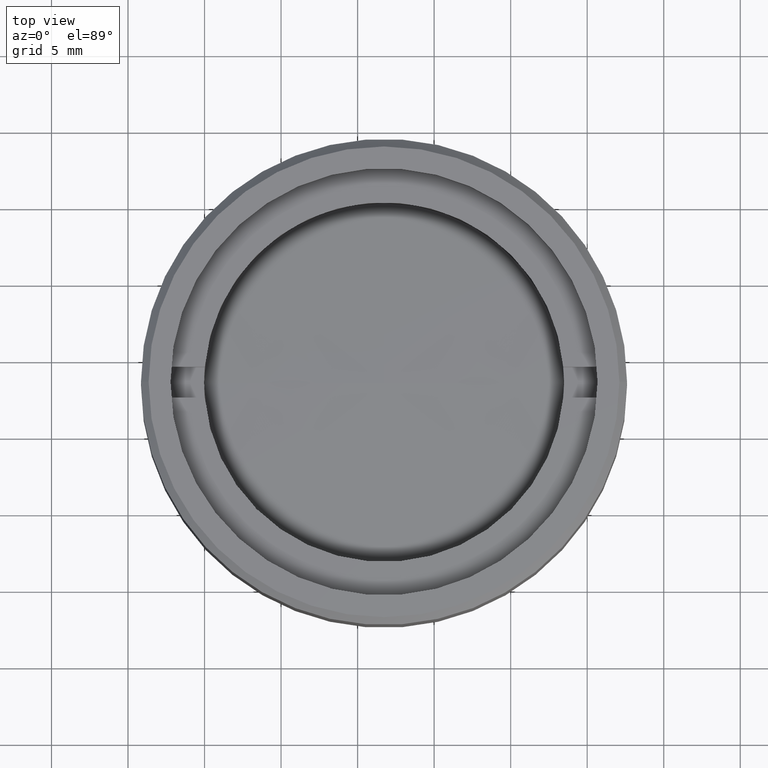
[diagram: clean part render]
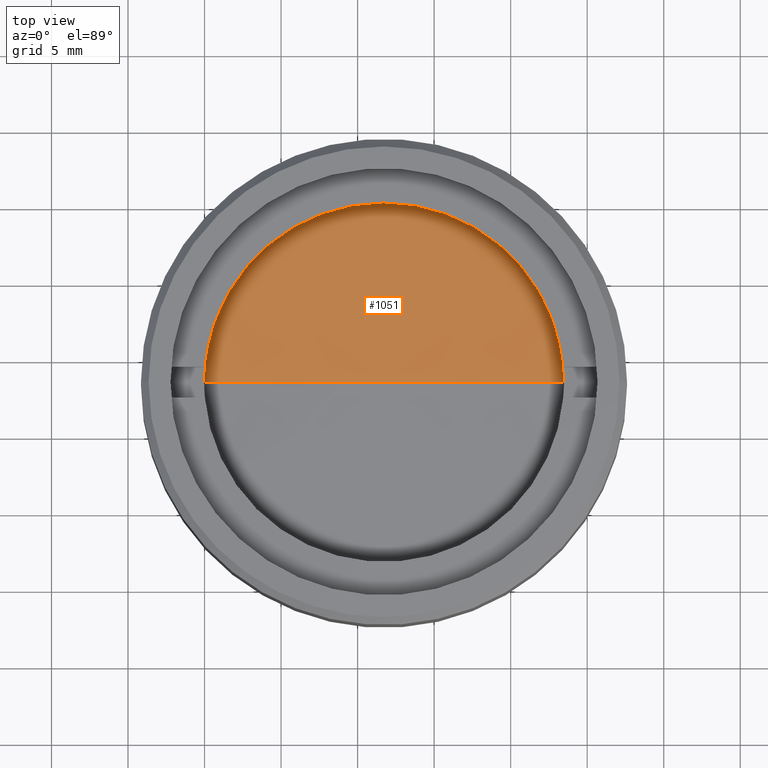
[diagram: same view with one face highlighted and labeled with its STEP entity id]
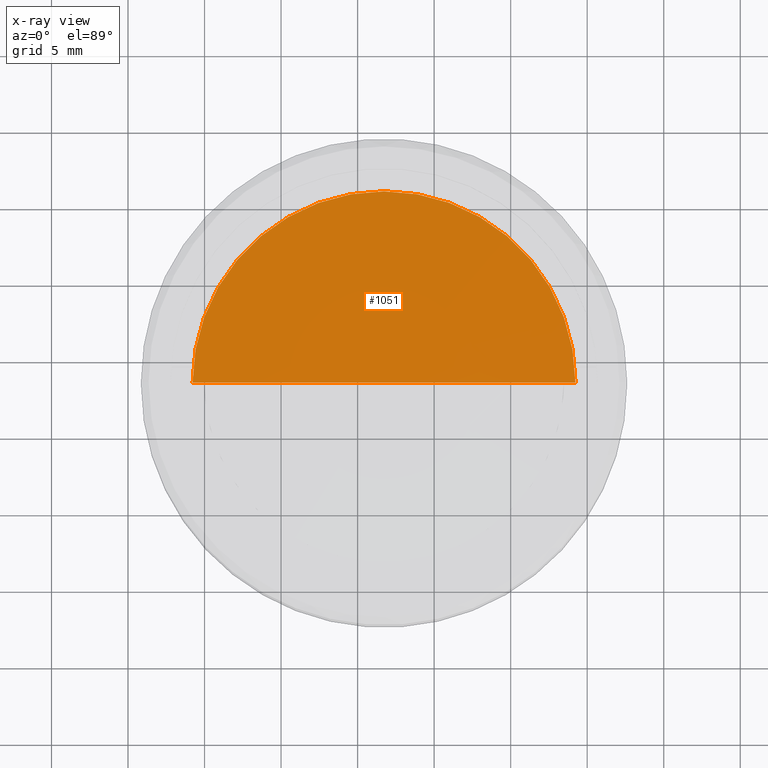
[diagram: x-ray of the same camera — body ghosted, the highlighted face saturated]
A machine part, top view. The second image highlights one B-rep face of the part: STEP entity #1051.
The next image is the same camera in x-ray: the body ghosted, the highlighted face saturated — about 0% of this face is hidden behind the body in this view.
In plain terms, the highlighted spherical surface has radius 337.3 mm.
Its self-contained STEP definition (entity closure, byte-faithful):
#247 = SPHERICAL_SURFACE ( 'NONE', #1670, 337.3000000000000114 ) ;
#286 = CARTESIAN_POINT ( 'NONE',  ( 12.50741619697420148, 1.543509078019979912E-15, -0.2319734236490010038 ) ) ;
#358 = DIRECTION ( 'NONE',  ( -3.033966043775914620E-17, 0.000000000000000000, 1.000000000000000000 ) ) ;
#363 = CIRCLE ( 'NONE', #1333, 337.3000000000000114 ) ;
#364 = VERTEX_POINT ( 'NONE', #286 ) ;
#410 = AXIS2_PLACEMENT_3D ( 'NONE', #1254, #358, #995 ) ;
#511 = DIRECTION ( 'NONE',  ( -1.000000000000000000, 0.000000000000000000, 0.000000000000000000 ) ) ;
#620 = ORIENTED_EDGE ( 'NONE', *, *, #927, .T. ) ;
#768 = EDGE_LOOP ( 'NONE', ( #1414, #620 ) ) ;
#814 = CARTESIAN_POINT ( 'NONE',  ( -12.50741619697422102, 0.000000000000000000, -0.2319734236490015034 ) ) ;
#904 = VERTEX_POINT ( 'NONE', #814 ) ;
#927 = EDGE_CURVE ( 'NONE', #364, #904, #1083, .T. ) ;
#995 = DIRECTION ( 'NONE',  ( -1.000000000000000000, 0.000000000000000000, -3.033966043775913387E-17 ) ) ;
#999 = EDGE_CURVE ( 'NONE', #364, #904, #363, .T. ) ;
#1051 = ADVANCED_FACE ( 'NONE', ( #1302 ), #247, .T. ) ;
#1083 = CIRCLE ( 'NONE', #410, 12.50741619697422102 ) ;
#1138 = DIRECTION ( 'NONE',  ( 0.000000000000000000, 0.000000000000000000, -1.000000000000000000 ) ) ;
#1181 = DIRECTION ( 'NONE',  ( 0.000000000000000000, -0.000000000000000000, 1.000000000000000000 ) ) ;
#1254 = CARTESIAN_POINT ( 'NONE',  ( -1.031973199603889884E-14, 0.000000000000000000, -0.2319734236490010038 ) ) ;
#1273 = CARTESIAN_POINT ( 'NONE',  ( 0.000000000000000000, 0.000000000000000000, -337.3000000000000114 ) ) ;
#1281 = DIRECTION ( 'NONE',  ( 0.000000000000000000, -1.000000000000000000, 0.000000000000000000 ) ) ;
#1302 = FACE_OUTER_BOUND ( 'NONE', #768, .T. ) ;
#1311 = CARTESIAN_POINT ( 'NONE',  ( 0.000000000000000000, 0.000000000000000000, -337.3000000000000114 ) ) ;
#1333 = AXIS2_PLACEMENT_3D ( 'NONE', #1273, #1281, #1138 ) ;
#1414 = ORIENTED_EDGE ( 'NONE', *, *, #999, .F. ) ;
#1670 = AXIS2_PLACEMENT_3D ( 'NONE', #1311, #1181, #511 ) ;